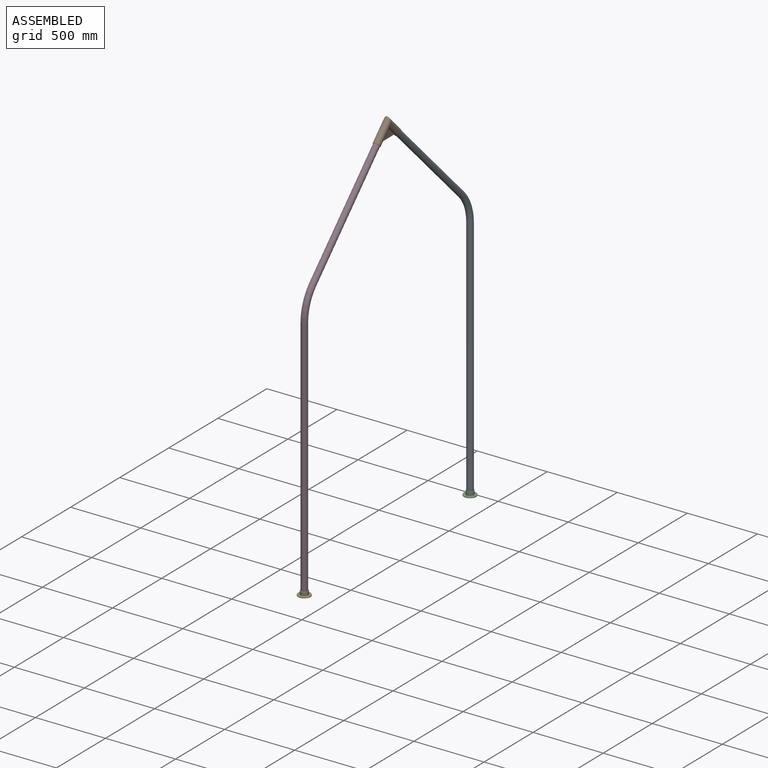
[diagram: assembled view]
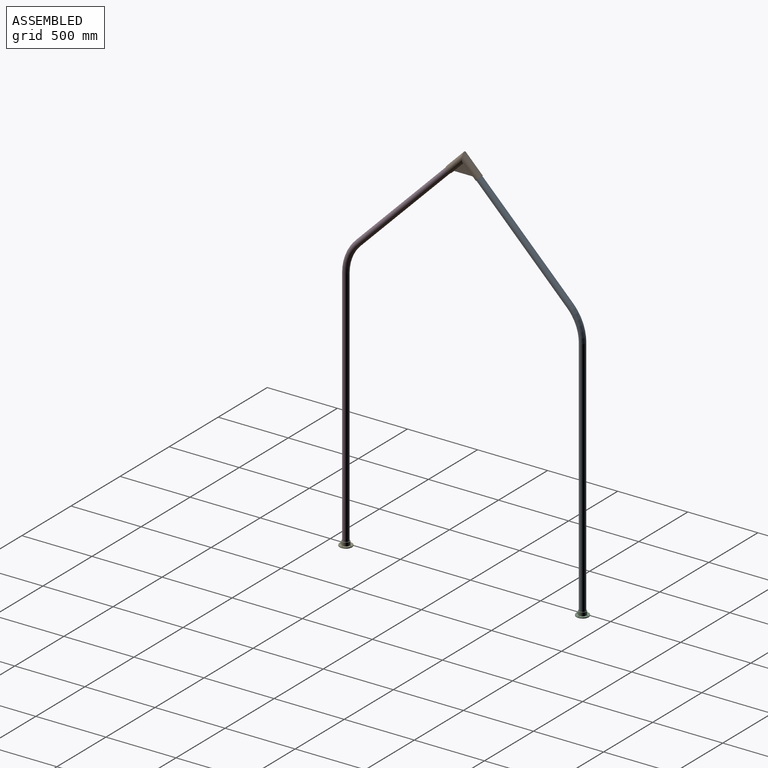
[diagram: assembled view, second angle]
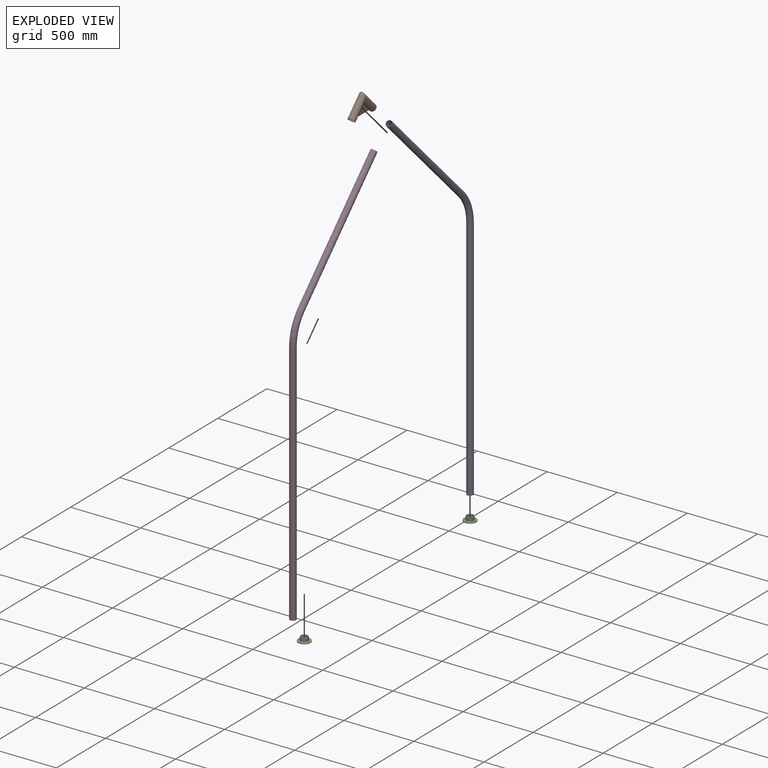
[diagram: exploded view]
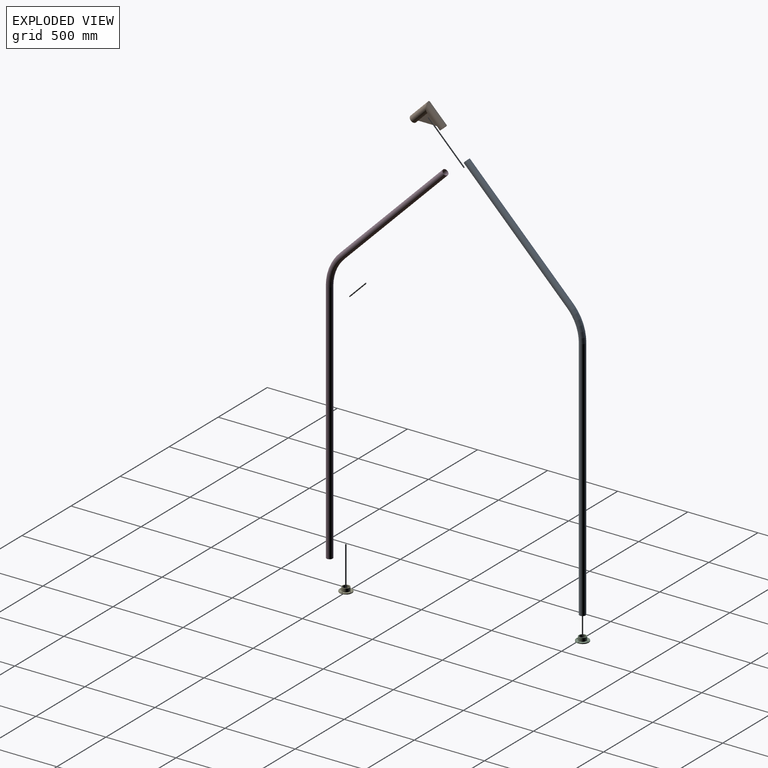
[diagram: exploded view, second angle]
ASSEMBLY  parts=5 mates=4
PART A: 8 faces, bbox 890.8x44.2x2721.4 mm
  f0: plane 44.2x44.2mm, normal (0,0,-1), area 196.1mm2, adj f2,f5
  f1: plane 44.2x31.25mm, normal (0.71,0,0.71), area 196.1mm2, adj f4,f7
  f2: cylinder r=22.1mm len=1753.35mm, axis (0,0,1), area 243445mm2, adj f0,f3
  f3: torus R=304.8mm, axis (0,1,0), area 33238.2mm2, adj f2,f4
  f4: cylinder r=22.1mm len=768.16mm, axis (0.71,0,0.71), area 144697.9mm2, adj f1,f3
  f5: cylinder r=20.64mm len=1753.35mm, axis (0,0,1), area 227355.3mm2, adj f0,f6
  f6: torus R=304.8mm, axis (0,1,0), area 31041.4mm2, adj f5,f7
  f7: cylinder r=20.64mm len=766.1mm, axis (0.71,0,0.71), area 135134.5mm2, adj f1,f6
PART B: 9 faces, bbox 50.9x178x178 mm
  f0: cylinder r=25.4mm len=177.88mm, axis (0,1,0), area 23998.9mm2, adj f1,f4,f6,f7,f8
  f1: cylinder r=25.4mm len=177.88mm, axis (0,0,1), area 23998.9mm2, adj f0,f5,f6,f7,f8
  f2: cylinder r=22.23mm len=174.63mm, axis (0,1,0), area 21175.7mm2, adj f3,f4
  f3: cylinder r=22.23mm len=174.63mm, axis (0,0,1), area 21175.7mm2, adj f2,f5
  f4: plane 50.8x50.8mm, normal (0,1,0), area 475mm2, adj f0,f2
  f5: plane 50.8x50.8mm, normal (0,0,-1), area 475mm2, adj f1,f3
  f6: plane 101.7x101.7mm, normal (-1,0,0), area 5171.4mm2, adj f0,f1,f8
  f7: plane 101.7x101.7mm, normal (1,0,0), area 5171.4mm2, adj f0,f1,f8
  f8: plane 101.8x101.8mm, normal (0,0.71,-0.71), area 456.3mm2, adj f0,f1,f6,f7
PART C: 24 faces, bbox 96.2x96.2x31.8 mm
  f0: cylinder r=22.23mm len=44.45mm, axis (0,0,-1), area 3325.3mm2, adj f21,f22
  f1: cylinder r=26.99mm len=53.98mm, axis (0,0,-1), area 4172.4mm2, adj f3,f23
  f2: plane 52.39x52.39mm, normal (0,0,1), area 490.9mm2, adj f22,f23
  f3: plane 87.31x87.31mm, normal (0,0,1), area 3127.9mm2, adj f1,f8,f10,f12,f14,f19
  f4: plane 87.31x87.31mm, normal (0,0,-1), area 5748.3mm2, adj f15,f16,f17,f18,f20
  f5: cylinder r=44.45mm len=88.9mm, axis (0,0,1), area 1330.1mm2, adj f19,f20
  f6: plane 42.86x42.86mm, normal (0,0,1), area 1442.9mm2, adj f21
  f7: cylinder r=3.57mm len=7.14mm, axis (0,0,1), area 42.7mm2, adj f8,f18
  f8: cone r=3.57mm half-angle=41deg, axis (0,0,1), area 156.8mm2, adj f3,f7
  f9: cylinder r=3.57mm len=7.14mm, axis (0,0,1), area 42.7mm2, adj f10,f17
  f10: cone r=3.57mm half-angle=41deg, axis (0,0,1), area 156.8mm2, adj f3,f9
  f11: cylinder r=3.57mm len=7.14mm, axis (0,0,1), area 42.7mm2, adj f12,f16
  f12: cone r=3.57mm half-angle=41deg, axis (0,0,1), area 156.8mm2, adj f3,f11
  f13: cylinder r=3.57mm len=7.14mm, axis (0,0,1), area 42.7mm2, adj f14,f15
  f14: cone r=3.57mm half-angle=41deg, axis (0,0,1), area 156.8mm2, adj f3,f13
  f15: torus R=4.36mm, axis (0,0,1), area 30.2mm2, adj f4,f13
  f16: torus R=4.36mm, axis (0,0,1), area 30.2mm2, adj f4,f11
  f17: torus R=4.36mm, axis (0,0,1), area 30.2mm2, adj f4,f9
  f18: torus R=4.36mm, axis (0,0,1), area 30.2mm2, adj f4,f7
  f19: torus R=43.66mm, axis (0,0,1), area 346mm2, adj f3,f5
  f20: torus R=43.66mm, axis (0,0,1), area 346mm2, adj f4,f5
  f21: torus R=21.43mm, axis (0,0,1), area 171.9mm2, adj f0,f6
  f22: torus R=23.02mm, axis (0,0,1), area 176.4mm2, adj f0,f2
  f23: torus R=26.19mm, axis (0,0,1), area 209.2mm2, adj f1,f2
PART D: same geometry as A
PART E: same geometry as C
PLACE A rot(axis=(0,0,-1),90deg) t=(0,0,5.56)mm
PLACE B rot(axis=(0,0.38,-0.92),180deg) t=(0,-736.38,2621.54)mm
PLACE C rot(axis=(0,0,-1),90deg) t=(0,0,6.35)mm
PLACE D rot(axis=(0,0,1),90deg) t=(0,-1688.29,5.56)mm
PLACE E rot(axis=(0,0,-1),90deg) t=(0,-1688.29,5.56)mm
MATE slider C.f1 <-> A.f2  axis (0,0,1) through (0,0,30.96)mm
MATE slider B.f1 <-> A.f4  axis (0,0.71,-0.71) through (0,-736.38,2621.54)mm
MATE slider B.f0 <-> D.f4  axis (0,-0.71,-0.71) through (0,-951.91,2621.54)mm
MATE slider E.f1 <-> D.f2  axis (0,0,1) through (0,-1688.29,30.96)mm
